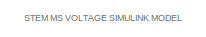
[diagram: root canvas - part 1/4, top center region]
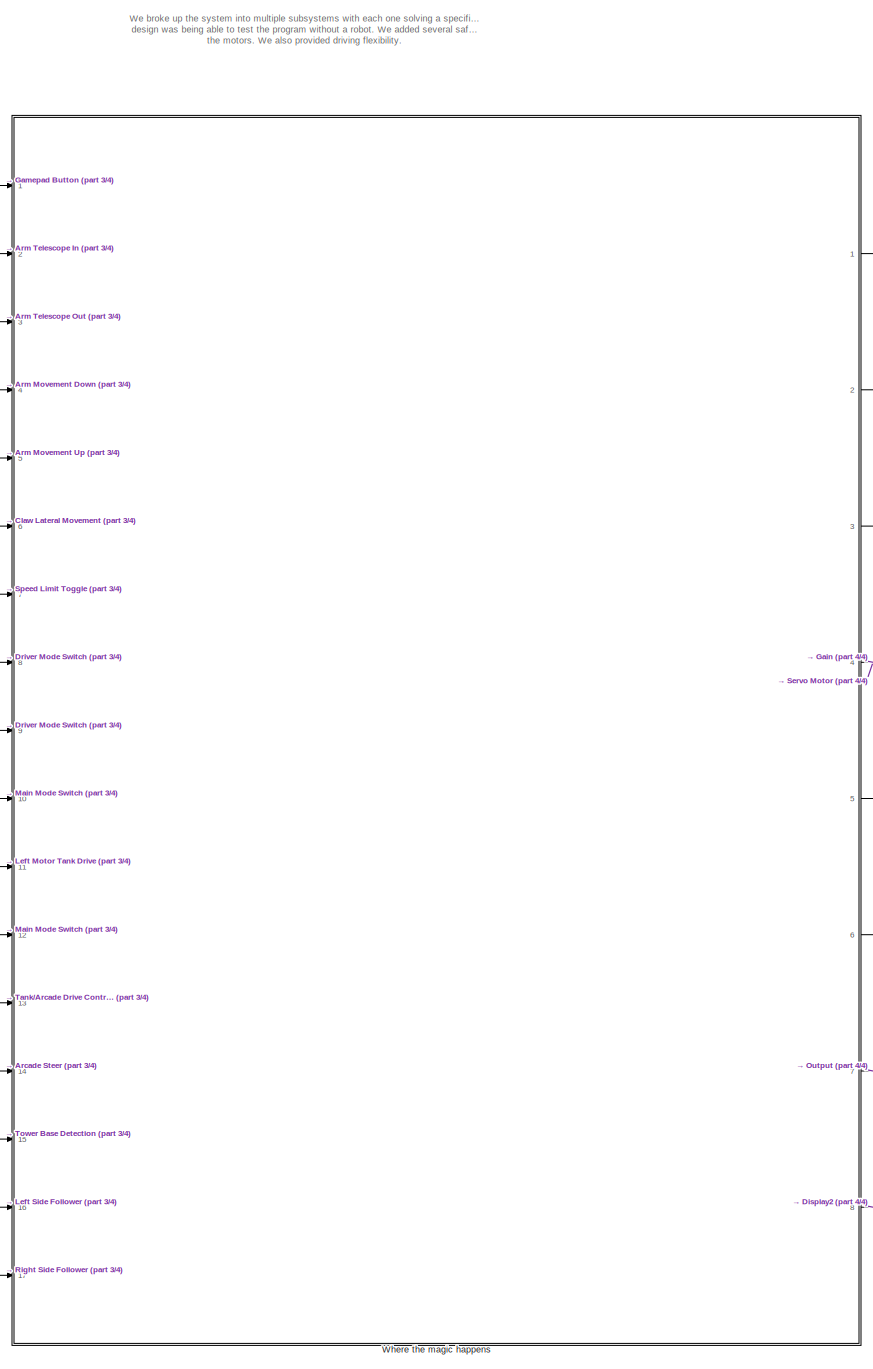
[diagram: root canvas - part 2/4, center side, full height]
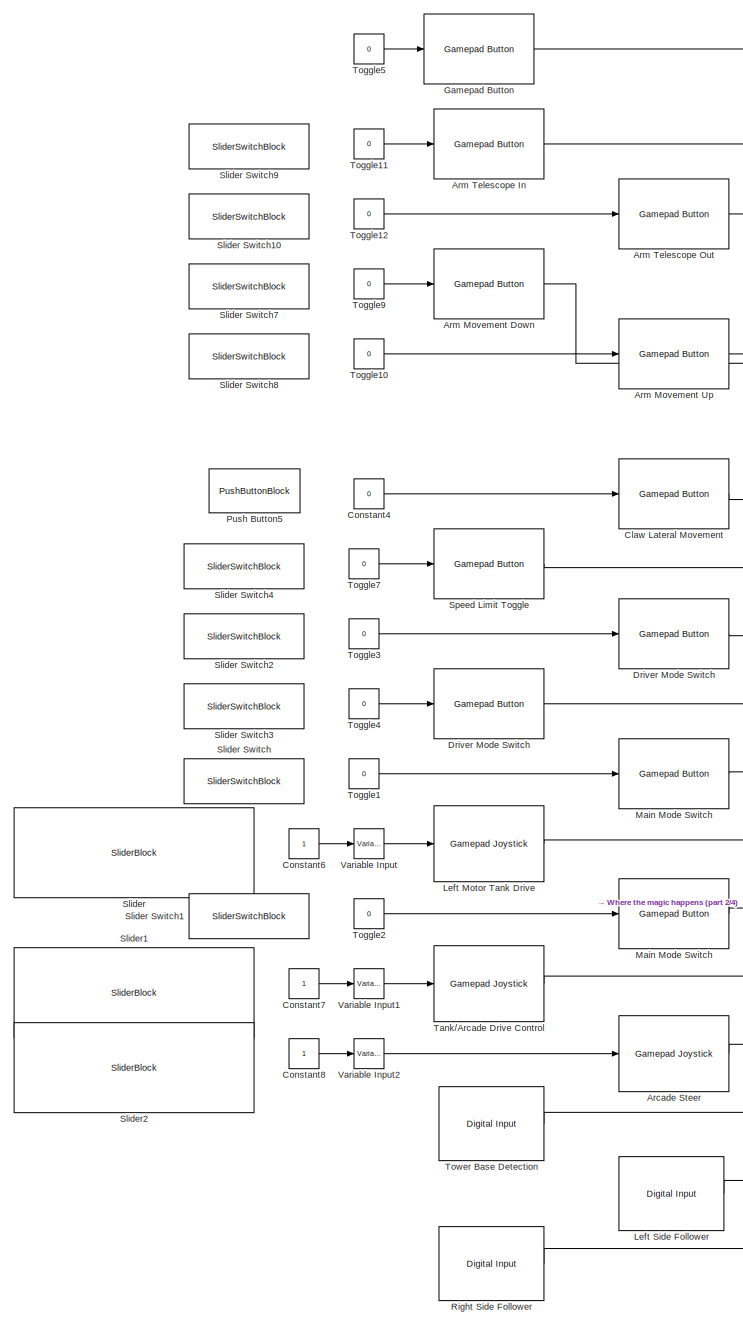
[diagram: root canvas - part 3/4, left side, full height]
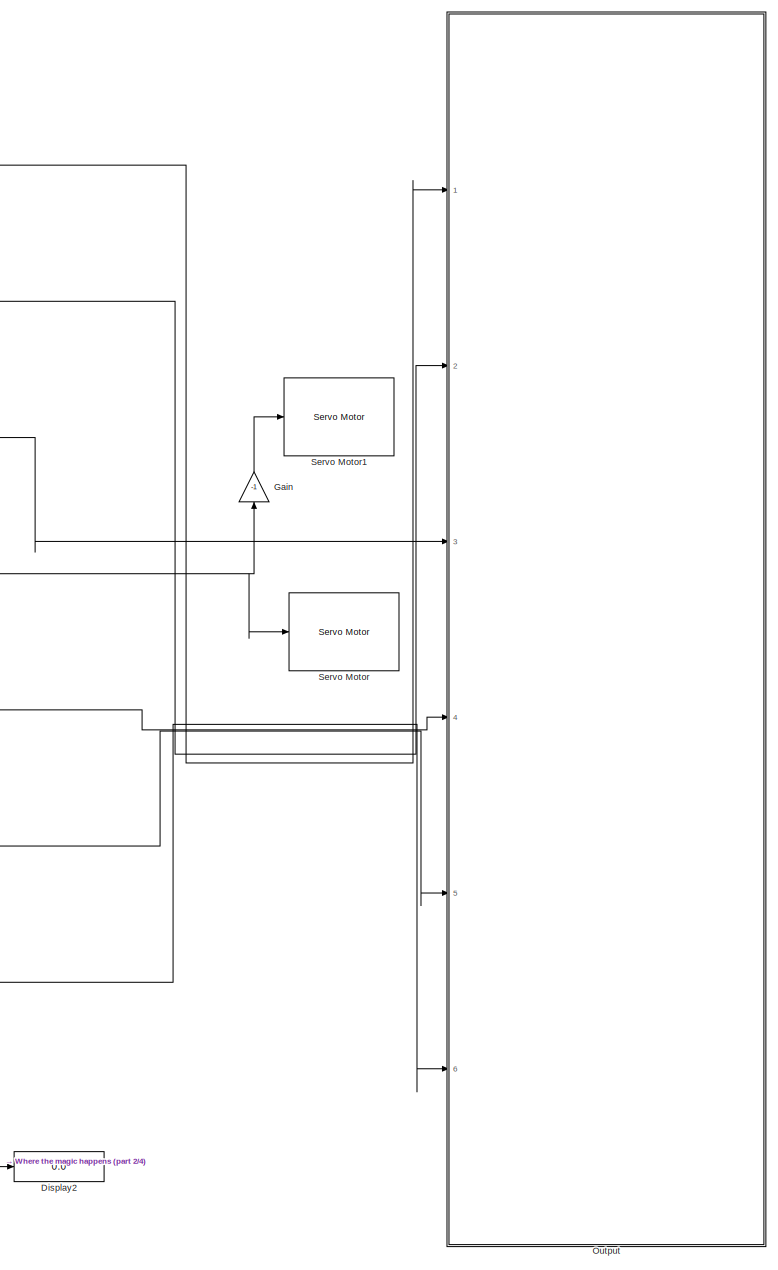
[diagram: root canvas - part 4/4, right side, full height]
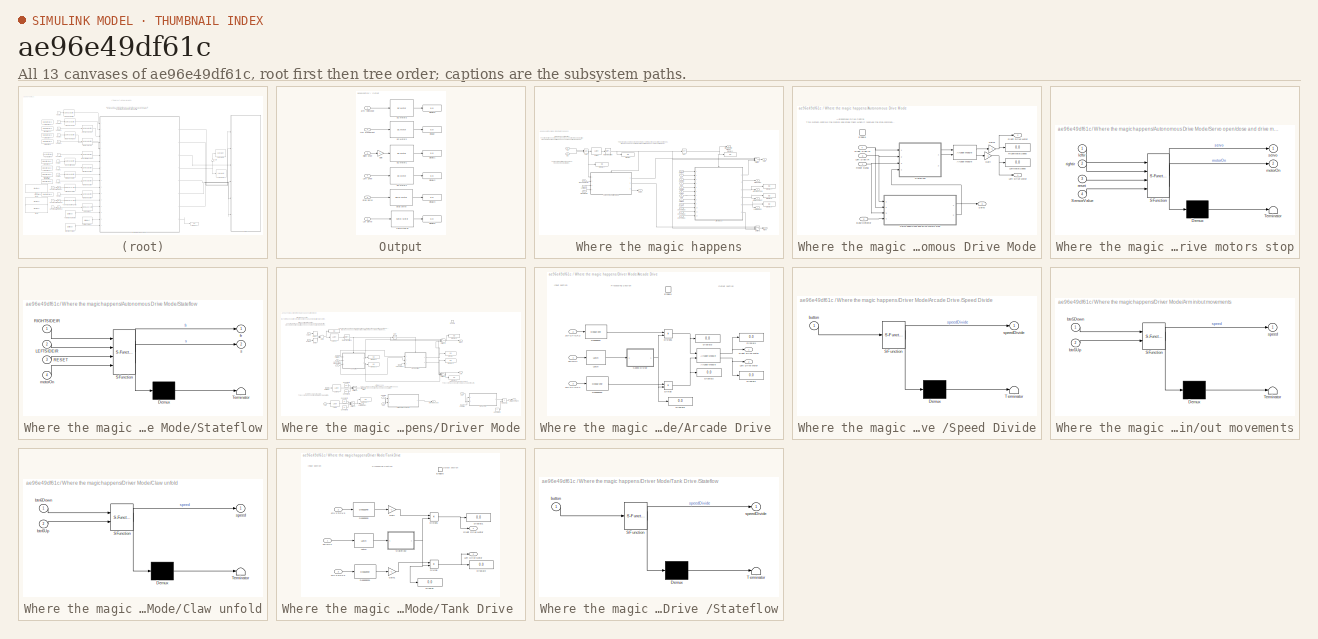
[diagram: thumbnail index - all 13 canvases of the model, root first then tree order]
MODEL slx_ae96e49df61c
KIND model
CONFIG AbsTol = auto
CONFIG EnableMultiTasking = off
CONFIG FixedStep = auto
CONFIG MaxStep = auto
CONFIG MinStep = auto
CONFIG RelTol = 1e-3
CONFIG SampleTimeConstraint = Unconstrained
CONFIG Solver = FixedStepAuto
CONFIG SolverName = FixedStepAuto
CONFIG StartTime = 0.0
CONFIG StopTime = inf
BLOCK [Reference] Arcade Steer   REF=vexarmcortexlib/Gamepad/Gamepad Joystick
  Ports = [1, 1]
  SourceBlock = vexarmcortexlib/Gamepad/Gamepad Joystick
  SourceProductBaseCode = EC_VEX_MICRO
  SourceProductName = Simulink Coder Support Package for ARM Cortex-based VEX Microcontroller
  SourceType = Gamepad Joystick
BLOCK [Reference] Arm Movement Down  REF=vexarmcortexlib/Gamepad/Gamepad Button
  Ports = [1, 1]
  SourceBlock = vexarmcortexlib/Gamepad/Gamepad Button
  SourceProductBaseCode = EC_VEX_MICRO
  SourceProductName = Simulink Coder Support Package for ARM Cortex-based VEX Microcontroller
  SourceType = Gamepad Button
BLOCK [Reference] Arm Movement Up  REF=vexarmcortexlib/Gamepad/Gamepad Button
  Ports = [1, 1]
  SourceBlock = vexarmcortexlib/Gamepad/Gamepad Button
  SourceProductBaseCode = EC_VEX_MICRO
  SourceProductName = Simulink Coder Support Package for ARM Cortex-based VEX Microcontroller
  SourceType = Gamepad Button
BLOCK [Reference] Arm Telescope In  REF=vexarmcortexlib/Gamepad/Gamepad Button
  Ports = [1, 1]
  SourceBlock = vexarmcortexlib/Gamepad/Gamepad Button
  SourceProductBaseCode = EC_VEX_MICRO
  SourceProductName = Simulink Coder Support Package for ARM Cortex-based VEX Microcontroller
  SourceType = Gamepad Button
BLOCK [Reference] Arm Telescope Out  REF=vexarmcortexlib/Gamepad/Gamepad Button
  Ports = [1, 1]
  SourceBlock = vexarmcortexlib/Gamepad/Gamepad Button
  SourceProductBaseCode = EC_VEX_MICRO
  SourceProductName = Simulink Coder Support Package for ARM Cortex-based VEX Microcontroller
  SourceType = Gamepad Button
BLOCK [Reference] Claw Lateral Movement  REF=vexarmcortexlib/Gamepad/Gamepad Button
  Ports = [1, 1]
  SourceBlock = vexarmcortexlib/Gamepad/Gamepad Button
  SourceProductBaseCode = EC_VEX_MICRO
  SourceProductName = Simulink Coder Support Package for ARM Cortex-based VEX Microcontroller
  SourceType = Gamepad Button
BLOCK [Constant] Constant4
  Value = 0
BLOCK [Constant] Constant6
BLOCK [Constant] Constant7
BLOCK [Constant] Constant8
BLOCK [Display] Display2
  Decimation = 1
  Ports = [1]
BLOCK [Reference] Driver Mode  Switch  REF=vexarmcortexlib/Gamepad/Gamepad Button
  Ports = [1, 1]
  SourceBlock = vexarmcortexlib/Gamepad/Gamepad Button
  SourceProductBaseCode = EC_VEX_MICRO
  SourceProductName = Simulink Coder Support Package for ARM Cortex-based VEX Microcontroller
  SourceType = Gamepad Button
BLOCK [Reference] Driver Mode Switch  REF=vexarmcortexlib/Gamepad/Gamepad Button
  Ports = [1, 1]
  SourceBlock = vexarmcortexlib/Gamepad/Gamepad Button
  SourceProductBaseCode = EC_VEX_MICRO
  SourceProductName = Simulink Coder Support Package for ARM Cortex-based VEX Microcontroller
  SourceType = Gamepad Button
BLOCK [Gain] Gain
  Gain = -1
  OutDataTypeStr = Inherit: Inherit via internal rule
  ParamDataTypeStr = Inherit: Inherit via internal rule
  SaturateOnIntegerOverflow = off
BLOCK [Reference] Gamepad Button  REF=vexarmcortexlib/Gamepad/Gamepad Button
  Ports = [1, 1]
  SourceBlock = vexarmcortexlib/Gamepad/Gamepad Button
  SourceProductBaseCode = EC_VEX_MICRO
  SourceProductName = Simulink Coder Support Package for ARM Cortex-based VEX Microcontroller
  SourceType = Gamepad Button
BLOCK [Reference] Left Motor Tank Drive  REF=vexarmcortexlib/Gamepad/Gamepad Joystick
  Ports = [1, 1]
  SourceBlock = vexarmcortexlib/Gamepad/Gamepad Joystick
  SourceProductBaseCode = EC_VEX_MICRO
  SourceProductName = Simulink Coder Support Package for ARM Cortex-based VEX Microcontroller
  SourceType = Gamepad Joystick
BLOCK [Reference] Left Side Follower  REF=vexarmcortexlib/Sensors/Digital Input
  Ports = [0, 1]
  SourceBlock = vexarmcortexlib/Sensors/Digital Input
  SourceProductBaseCode = EC_VEX_MICRO
  SourceProductName = Simulink Coder Support Package for ARM Cortex-based VEX Microcontroller
  SourceType = Digital Input
BLOCK [Reference] Main Mode  Switch  REF=vexarmcortexlib/Gamepad/Gamepad Button
  Ports = [1, 1]
  SourceBlock = vexarmcortexlib/Gamepad/Gamepad Button
  SourceProductBaseCode = EC_VEX_MICRO
  SourceProductName = Simulink Coder Support Package for ARM Cortex-based VEX Microcontroller
  SourceType = Gamepad Button
BLOCK [Reference] Main Mode Switch  REF=vexarmcortexlib/Gamepad/Gamepad Button
  Ports = [1, 1]
  SourceBlock = vexarmcortexlib/Gamepad/Gamepad Button
  SourceProductBaseCode = EC_VEX_MICRO
  SourceProductName = Simulink Coder Support Package for ARM Cortex-based VEX Microcontroller
  SourceType = Gamepad Button
BLOCK [SubSystem] Output
  Ports = [6]
  RequestExecContextInheritance = off
BLOCK [Inport] Output/Arm Movement
  IconDisplay = Port number
  Port = 2
BLOCK [Reference] Output/DC Motor1  REF=vexarmcortexlib/Actuators/DC Motor
  Ports = [1, 1]
  SourceBlock = vexarmcortexlib/Actuators/DC Motor
  SourceProductBaseCode = EC_VEX_MICRO
  SourceProductName = Simulink Coder Support Package for ARM Cortex-based VEX Microcontroller
  SourceType = DC Motor
BLOCK [Reference] Output/DC Motor2  REF=vexarmcortexlib/Actuators/DC Motor
  Ports = [1, 1]
  SourceBlock = vexarmcortexlib/Actuators/DC Motor
  SourceProductBaseCode = EC_VEX_MICRO
  SourceProductName = Simulink Coder Support Package for ARM Cortex-based VEX Microcontroller
  SourceType = DC Motor
BLOCK [Reference] Output/DC Motor3  REF=vexarmcortexlib/Actuators/DC Motor
  Ports = [1, 1]
  SourceBlock = vexarmcortexlib/Actuators/DC Motor
  SourceProductBaseCode = EC_VEX_MICRO
  SourceProductName = Simulink Coder Support Package for ARM Cortex-based VEX Microcontroller
  SourceType = DC Motor
BLOCK [Reference] Output/DC Motor4  REF=vexarmcortexlib/Actuators/DC Motor
  Ports = [1, 1]
  SourceBlock = vexarmcortexlib/Actuators/DC Motor
  SourceProductBaseCode = EC_VEX_MICRO
  SourceProductName = Simulink Coder Support Package for ARM Cortex-based VEX Microcontroller
  SourceType = DC Motor
BLOCK [Display] Output/Display
  Decimation = 1
  Ports = [1]
BLOCK [Display] Output/Display1
  Decimation = 1
  Ports = [1]
BLOCK [Display] Output/Display2
  Decimation = 1
  Ports = [1]
BLOCK [Display] Output/Display3
  Decimation = 1
  Ports = [1]
BLOCK [Display] Output/Display5
  Decimation = 1
  Ports = [1]
BLOCK [Display] Output/Display6
  Decimation = 1
  Ports = [1]
BLOCK [Gain] Output/Gain
  Gain = -1
  OutDataTypeStr = Inherit: Inherit via internal rule
  ParamDataTypeStr = Inherit: Inherit via internal rule
  SaturateOnIntegerOverflow = off
BLOCK [Inport] Output/Grab Servo
  IconDisplay = Port number
  Port = 5
BLOCK [Reference] Output/Grab servo  REF=vexarmcortexlib/Actuators/Servo Motor
  Ports = [1, 1]
  SourceBlock = vexarmcortexlib/Actuators/Servo Motor
  SourceProductBaseCode = EC_VEX_MICRO
  SourceProductName = Simulink Coder Support Package for ARM Cortex-based VEX Microcontroller
  SourceType = Servo Motor
BLOCK [Inport] Output/Lat Servo
  IconDisplay = Port number
  Port = 6
BLOCK [Reference] Output/Lateral Servo  REF=vexarmcortexlib/Actuators/Servo Motor
  Ports = [1, 1]
  SourceBlock = vexarmcortexlib/Actuators/Servo Motor
  SourceProductBaseCode = EC_VEX_MICRO
  SourceProductName = Simulink Coder Support Package for ARM Cortex-based VEX Microcontroller
  SourceType = Servo Motor
BLOCK [Inport] Output/Left Drive
  IconDisplay = Port number
  Port = 4
BLOCK [Inport] Output/Right Drive
  IconDisplay = Port number
  Port = 3
BLOCK [Inport] Output/arm telescope
  IconDisplay = Port number
BLOCK [PushButtonBlock] Push Button5
BLOCK [Reference] Right Side Follower  REF=vexarmcortexlib/Sensors/Digital Input
  Ports = [0, 1]
  SourceBlock = vexarmcortexlib/Sensors/Digital Input
  SourceProductBaseCode = EC_VEX_MICRO
  SourceProductName = Simulink Coder Support Package for ARM Cortex-based VEX Microcontroller
  SourceType = Digital Input
BLOCK [Reference] Servo Motor  REF=vexarmcortexlib/Actuators/Servo Motor
  Ports = [1]
  SourceBlock = vexarmcortexlib/Actuators/Servo Motor
  SourceProductBaseCode = EC_VEX_MICRO
  SourceProductName = Simulink Coder Support Package for ARM Cortex-based VEX Microcontroller
  SourceType = Servo Motor
BLOCK [Reference] Servo Motor1  REF=vexarmcortexlib/Actuators/Servo Motor
  Ports = [1]
  SourceBlock = vexarmcortexlib/Actuators/Servo Motor
  SourceProductBaseCode = EC_VEX_MICRO
  SourceProductName = Simulink Coder Support Package for ARM Cortex-based VEX Microcontroller
  SourceType = Servo Motor
BLOCK [SliderBlock] Slider
  LabelPosition = Hide
  ScaleMax = 127
  ScaleMin = -127
BLOCK [SliderSwitchBlock] Slider Switch
  LabelPosition = Hide
BLOCK [SliderSwitchBlock] Slider Switch1
  LabelPosition = Hide
BLOCK [SliderSwitchBlock] Slider Switch10
  LabelPosition = Hide
BLOCK [SliderSwitchBlock] Slider Switch2
  LabelPosition = Hide
BLOCK [SliderSwitchBlock] Slider Switch3
  LabelPosition = Hide
BLOCK [SliderSwitchBlock] Slider Switch4
  LabelPosition = Hide
BLOCK [SliderSwitchBlock] Slider Switch7
  LabelPosition = Hide
BLOCK [SliderSwitchBlock] Slider Switch8
  LabelPosition = Hide
BLOCK [SliderSwitchBlock] Slider Switch9
  LabelPosition = Hide
BLOCK [SliderBlock] Slider1
  LabelPosition = Hide
  ScaleMax = 127
  ScaleMin = -127
BLOCK [SliderBlock] Slider2
  LabelPosition = Hide
  ScaleMax = 127
  ScaleMin = -127
BLOCK [Reference] Speed Limit Toggle  REF=vexarmcortexlib/Gamepad/Gamepad Button
  Ports = [1, 1]
  SourceBlock = vexarmcortexlib/Gamepad/Gamepad Button
  SourceProductBaseCode = EC_VEX_MICRO
  SourceProductName = Simulink Coder Support Package for ARM Cortex-based VEX Microcontroller
  SourceType = Gamepad Button
BLOCK [Reference] Tank//Arcade Drive Control  REF=vexarmcortexlib/Gamepad/Gamepad Joystick
  Ports = [1, 1]
  SourceBlock = vexarmcortexlib/Gamepad/Gamepad Joystick
  SourceProductBaseCode = EC_VEX_MICRO
  SourceProductName = Simulink Coder Support Package for ARM Cortex-based VEX Microcontroller
  SourceType = Gamepad Joystick
BLOCK [Constant] Toggle1
  OpenFcn = if strcmp('0',get_param(gcb, 'Value'))                        set_param(gcb, 'Value', '1');\nelse                                                                                       \n            set_param(gcb, 'Value', '0');                                                  \nend  <repeated x10 — deduplicated; at blocks: Toggle1, Toggle10, Toggle11, Toggle12, Toggle2, Toggle3, Toggle4, Toggle5, Toggle7, Toggle9>
  Value = 0
BLOCK [Constant] Toggle10
  Value = 0
BLOCK [Constant] Toggle11
  Value = 0
BLOCK [Constant] Toggle12
  Value = 0
BLOCK [Constant] Toggle2
  Value = 0
BLOCK [Constant] Toggle3
  Value = 0
BLOCK [Constant] Toggle4
  Value = 0
BLOCK [Constant] Toggle5
  Value = 0
BLOCK [Constant] Toggle7
  Value = 0
BLOCK [Constant] Toggle9
  Value = 0
BLOCK [Reference] Tower Base Detection  REF=vexarmcortexlib/Sensors/Digital Input
  Ports = [0, 1]
  SourceBlock = vexarmcortexlib/Sensors/Digital Input
  SourceProductBaseCode = EC_VEX_MICRO
  SourceProductName = Simulink Coder Support Package for ARM Cortex-based VEX Microcontroller
  SourceType = Digital Input
BLOCK [Reference] Variable Input  REF=vexarmcortexlib/Utilities/Variable Input
  Ports = [1, 1]
  SourceBlock = vexarmcortexlib/Utilities/Variable Input
  SourceProductBaseCode = EC_VEX_MICRO
  SourceProductName = Simulink Coder Support Package for ARM Cortex-based VEX Microcontroller
  SourceType = Slider Gain
BLOCK [Reference] Variable Input1  REF=vexarmcortexlib/Utilities/Variable Input
  Ports = [1, 1]
  SourceBlock = vexarmcortexlib/Utilities/Variable Input
  SourceProductBaseCode = EC_VEX_MICRO
  SourceProductName = Simulink Coder Support Package for ARM Cortex-based VEX Microcontroller
  SourceType = Slider Gain
BLOCK [Reference] Variable Input2  REF=vexarmcortexlib/Utilities/Variable Input
  Ports = [1, 1]
  SourceBlock = vexarmcortexlib/Utilities/Variable Input
  SourceProductBaseCode = EC_VEX_MICRO
  SourceProductName = Simulink Coder Support Package for ARM Cortex-based VEX Microcontroller
  SourceType = Slider Gain
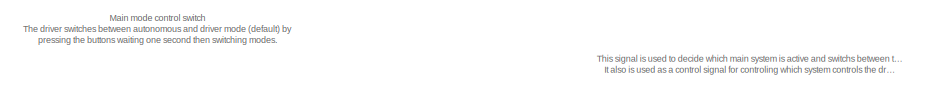
[diagram: Where the magic happens - part 1/3, top left region]
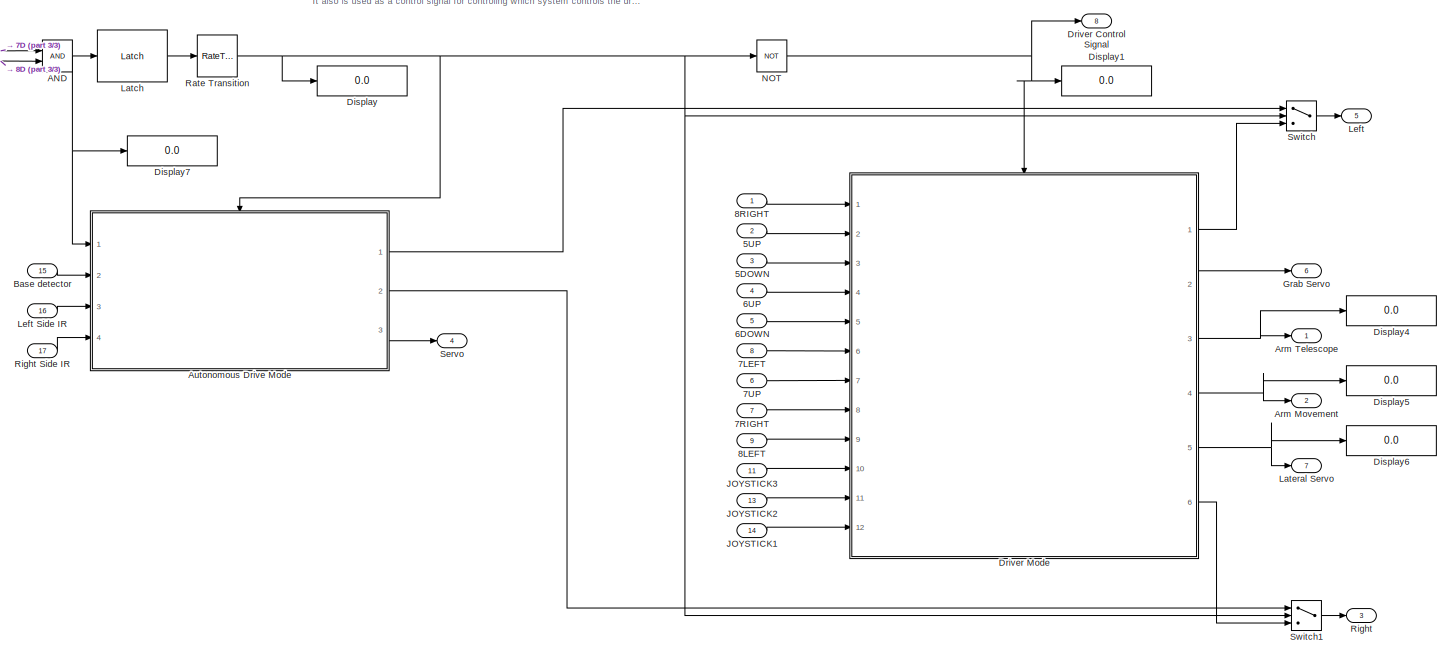
[diagram: Where the magic happens - part 2/3, most of the canvas]
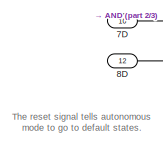
[diagram: Where the magic happens - part 3/3, top left region]
BLOCK [SubSystem] Where the magic happens
  Ports = [17, 8]
  RequestExecContextInheritance = off
BLOCK [Inport] Where the magic happens/5DOWN
  IconDisplay = Port number
  Port = 3
BLOCK [Inport] Where the magic happens/5UP
  IconDisplay = Port number
  Port = 2
BLOCK [Inport] Where the magic happens/6DOWN
  IconDisplay = Port number
  Port = 5
BLOCK [Inport] Where the magic happens/6UP
  IconDisplay = Port number
  Port = 4
BLOCK [Inport] Where the magic happens/7D
  IconDisplay = Port number
  Port = 10
BLOCK [Inport] Where the magic happens/7LEFT
  IconDisplay = Port number
  Port = 8
BLOCK [Inport] Where the magic happens/7RIGHT
  IconDisplay = Port number
  Port = 7
BLOCK [Inport] Where the magic happens/7UP
  IconDisplay = Port number
  Port = 6
BLOCK [Inport] Where the magic happens/8D
  IconDisplay = Port number
  Port = 12
BLOCK [Inport] Where the magic happens/8LEFT
  IconDisplay = Port number
  Port = 9
BLOCK [Inport] Where the magic happens/8RIGHT
  IconDisplay = Port number
BLOCK [Logic] Where the magic happens/AND 
  AllPortsSameDT = off
  IconShape = distinctive
  OutDataTypeStr = boolean
  Ports = [2, 1]
BLOCK [Outport] Where the magic happens/Arm Movement
  IconDisplay = Port number
  Port = 2
BLOCK [Outport] Where the magic happens/Arm Telescope
  IconDisplay = Port number
BLOCK [SubSystem] Where the magic happens/Autonomous Drive Mode
  Ports = [4, 3, 1]
  RequestExecContextInheritance = off
BLOCK [Reference] Where the magic happens/Autonomous Drive Mode/Arcade Module  REF=vexcommonlib/Arcade Module
  Ports = [2, 2]
  SourceBlock = vexcommonlib/Arcade Module
  SourceProductBaseCode = EC_VEX_MICRO
  SourceProductName = Simulink Coder Support Package for ARM Cortex-based VEX Microcontroller
  SourceType = Arcade-2 Motors Module
BLOCK [Inport] Where the magic happens/Autonomous Drive Mode/Base Detector
  IconDisplay = Port number
  Port = 2
BLOCK [EnablePort] Where the magic happens/Autonomous Drive Mode/Enable
  Ports = []
BLOCK [Gain] Where the magic happens/Autonomous Drive Mode/Gain
  Gain = -1
  OutDataTypeStr = Inherit: Inherit via internal rule
  ParamDataTypeStr = Inherit: Inherit via internal rule
  SaturateOnIntegerOverflow = off
BLOCK [Gain] Where the magic happens/Autonomous Drive Mode/Gain1
  Gain = -1
  OutDataTypeStr = Inherit: Inherit via internal rule
  ParamDataTypeStr = Inherit: Inherit via internal rule
  SaturateOnIntegerOverflow = off
BLOCK [Outport] Where the magic happens/Autonomous Drive Mode/Left Drive Motor
  IconDisplay = Port number
BLOCK [Inport] Where the magic happens/Autonomous Drive Mode/Left Side IR
  IconDisplay = Port number
  Port = 3
BLOCK [Display] Where the magic happens/Autonomous Drive Mode/LeftMotorSpeed
  Decimation = 1
  Ports = [1]
BLOCK [Inport] Where the magic happens/Autonomous Drive Mode/Reset signal
  IconDisplay = Port number
BLOCK [Outport] Where the magic happens/Autonomous Drive Mode/Right Drive Motor
  IconDisplay = Port number
  Port = 2
BLOCK [Inport] Where the magic happens/Autonomous Drive Mode/Right Side IR
  IconDisplay = Port number
  Port = 4
BLOCK [Display] Where the magic happens/Autonomous Drive Mode/RightMotorSpeed
  Decimation = 1
  Ports = [1]
BLOCK [Outport] Where the magic happens/Autonomous Drive Mode/Servo
  IconDisplay = Port number
  Port = 3
BLOCK [SubSystem] Where the magic happens/Autonomous Drive Mode/Servo open//close and drive motors stop
  ErrorFcn = Stateflow.Translate.translate
  PermitHierarchicalResolution = ExplicitOnly
  Ports = [4, 2]
  RequestExecContextInheritance = off
  SFBlockType = Chart
  TreatAsAtomicUnit = on
BLOCK [Demux] Where the magic happens/Autonomous Drive Mode/Servo open//close and drive motors stop/ Demux 
  Outputs = 1
  Ports = [1, 1]
BLOCK [S-Function] Where the magic happens/Autonomous Drive Mode/Servo open//close and drive motors stop/ SFunction 
  EnableBusSupport = on
  FunctionName = sf_sfun
  PortCounts = [4 3]
  Ports = [4, 3]
  SFcnIsStateOwnerBlock = off
  SFunctionDeploymentMode = off
  Tag = Stateflow S-Function 4
BLOCK [Terminator] Where the magic happens/Autonomous Drive Mode/Servo open//close and drive motors stop/ Terminator 
BLOCK [Inport] Where the magic happens/Autonomous Drive Mode/Servo open//close and drive motors stop/SensorValue
  IconDisplay = Port number
  Port = 4
BLOCK [Inport] Where the magic happens/Autonomous Drive Mode/Servo open//close and drive motors stop/leftir
  IconDisplay = Port number
BLOCK [Outport] Where the magic happens/Autonomous Drive Mode/Servo open//close and drive motors stop/motorOn
  IconDisplay = Port number
  Port = 2
BLOCK [Inport] Where the magic happens/Autonomous Drive Mode/Servo open//close and drive motors stop/reset
  IconDisplay = Port number
  Port = 3
BLOCK [Inport] Where the magic happens/Autonomous Drive Mode/Servo open//close and drive motors stop/rightir
  IconDisplay = Port number
  Port = 2
BLOCK [Outport] Where the magic happens/Autonomous Drive Mode/Servo open//close and drive motors stop/servo
  IconDisplay = Port number
BLOCK [SubSystem] Where the magic happens/Autonomous Drive Mode/Stateflow
  ErrorFcn = Stateflow.Translate.translate
  PermitHierarchicalResolution = ExplicitOnly
  Ports = [4, 2]
  RequestExecContextInheritance = off
  SFBlockType = Chart
  TreatAsAtomicUnit = on
BLOCK [Demux] Where the magic happens/Autonomous Drive Mode/Stateflow/ Demux 
  Outputs = 1
  Ports = [1, 1]
BLOCK [S-Function] Where the magic happens/Autonomous Drive Mode/Stateflow/ SFunction 
  EnableBusSupport = on
  FunctionName = sf_sfun
  PortCounts = [4 3]
  Ports = [4, 3]
  SFcnIsStateOwnerBlock = off
  SFunctionDeploymentMode = off
  Tag = Stateflow S-Function 1
BLOCK [Terminator] Where the magic happens/Autonomous Drive Mode/Stateflow/ Terminator 
BLOCK [Inport] Where the magic happens/Autonomous Drive Mode/Stateflow/LEFTSIDEIR
  IconDisplay = Port number
  Port = 2
BLOCK [Inport] Where the magic happens/Autonomous Drive Mode/Stateflow/RESET
  IconDisplay = Port number
  Port = 3
BLOCK [Inport] Where the magic happens/Autonomous Drive Mode/Stateflow/RIGHTSIDEIR
  IconDisplay = Port number
BLOCK [Outport] Where the magic happens/Autonomous Drive Mode/Stateflow/fr
  IconDisplay = Port number
BLOCK [Inport] Where the magic happens/Autonomous Drive Mode/Stateflow/motorOn
  IconDisplay = Port number
  Port = 4
BLOCK [Outport] Where the magic happens/Autonomous Drive Mode/Stateflow/s
  IconDisplay = Port number
  Port = 2
BLOCK [Inport] Where the magic happens/Base detector
  IconDisplay = Port number
  Port = 15
BLOCK [Display] Where the magic happens/Display
  Decimation = 1
  Ports = [1]
BLOCK [Display] Where the magic happens/Display1
  Decimation = 1
  Ports = [1]
BLOCK [Display] Where the magic happens/Display4
  Decimation = 1
  Ports = [1]
BLOCK [Display] Where the magic happens/Display5
  Decimation = 1
  Ports = [1]
BLOCK [Display] Where the magic happens/Display6
  Decimation = 1
  Ports = [1]
BLOCK [Display] Where the magic happens/Display7
  Decimation = 1
  Ports = [1]
BLOCK [Outport] Where the magic happens/Driver Control Signal
  IconDisplay = Port number
  Port = 8
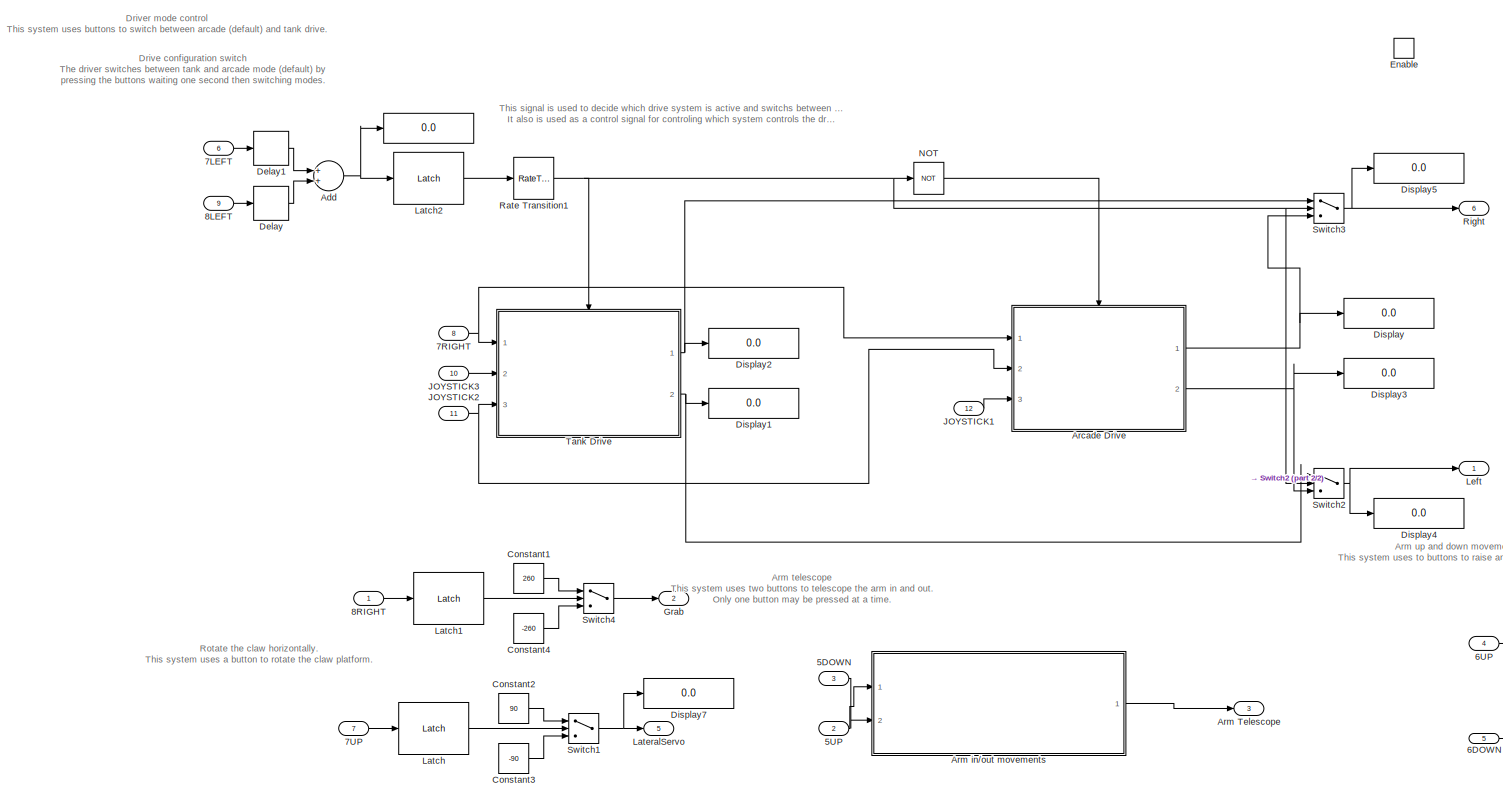
[diagram: Where the magic happens/Driver Mode - part 1/2, most of the canvas]
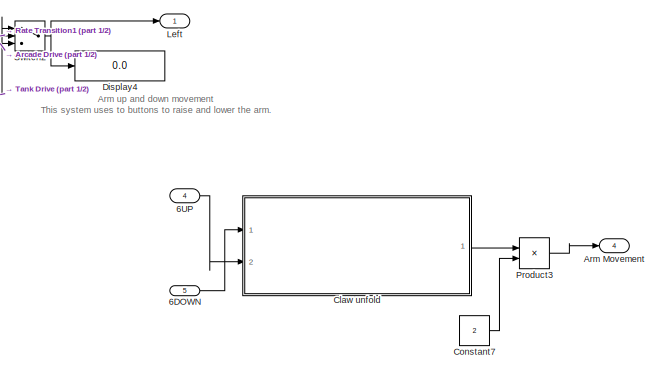
[diagram: Where the magic happens/Driver Mode - part 2/2, bottom right region]
BLOCK [SubSystem] Where the magic happens/Driver Mode
  Ports = [12, 6, 1]
  RequestExecContextInheritance = off
  TreatAsAtomicUnit = on
BLOCK [Display] Where the magic happens/Driver Mode/ 
  Decimation = 1
  Ports = [1]
BLOCK [Inport] Where the magic happens/Driver Mode/5DOWN
  IconDisplay = Port number
  Port = 3
BLOCK [Inport] Where the magic happens/Driver Mode/5UP
  IconDisplay = Port number
  Port = 2
BLOCK [Inport] Where the magic happens/Driver Mode/6DOWN
  IconDisplay = Port number
  Port = 5
BLOCK [Inport] Where the magic happens/Driver Mode/6UP
  IconDisplay = Port number
  Port = 4
BLOCK [Inport] Where the magic happens/Driver Mode/7LEFT
  IconDisplay = Port number
  Port = 6
BLOCK [Inport] Where the magic happens/Driver Mode/7RIGHT
  IconDisplay = Port number
  Port = 8
BLOCK [Inport] Where the magic happens/Driver Mode/7UP
  IconDisplay = Port number
  Port = 7
BLOCK [Inport] Where the magic happens/Driver Mode/8LEFT
  IconDisplay = Port number
  Port = 9
BLOCK [Inport] Where the magic happens/Driver Mode/8RIGHT
  IconDisplay = Port number
BLOCK [Sum] Where the magic happens/Driver Mode/Add
  InputSameDT = off
  OutDataTypeStr = Inherit: Inherit via internal rule
  Ports = [2, 1]
  SaturateOnIntegerOverflow = off
BLOCK [SubSystem] Where the magic happens/Driver Mode/Arcade Drive 
  Ports = [3, 2, 1]
  RequestExecContextInheritance = off
  TreatAsAtomicUnit = on
BLOCK [Inport] Where the magic happens/Driver Mode/Arcade Drive /7RIGHT
  IconDisplay = Port number
BLOCK [Reference] Where the magic happens/Driver Mode/Arcade Drive /Arcade Module  REF=vexcommonlib/Arcade Module
  Ports = [2, 2]
  SourceBlock = vexcommonlib/Arcade Module
  SourceProductBaseCode = EC_VEX_MICRO
  SourceProductName = Simulink Coder Support Package for ARM Cortex-based VEX Microcontroller
  SourceType = Arcade-2 Motors Module
BLOCK [DeadZone] Where the magic happens/Driver Mode/Arcade Drive /Deadband
  LowerValue = -9
  UpperValue = 9
BLOCK [DeadZone] Where the magic happens/Driver Mode/Arcade Drive /Deadband1
  LowerValue = -9
  UpperValue = 9
BLOCK [Display] Where the magic happens/Driver Mode/Arcade Drive /Display1
  Decimation = 1
  Ports = [1]
BLOCK [Display] Where the magic happens/Driver Mode/Arcade Drive /Display2
  Decimation = 1
  Ports = [1]
BLOCK [Display] Where the magic happens/Driver Mode/Arcade Drive /Display3
  Decimation = 1
  Ports = [1]
BLOCK [Display] Where the magic happens/Driver Mode/Arcade Drive /Display4
  Decimation = 1
  Ports = [1]
BLOCK [Display] Where the magic happens/Driver Mode/Arcade Drive /Display6
  Decimation = 1
  Ports = [1]
BLOCK [Product] Where the magic happens/Driver Mode/Arcade Drive /Divide
  InputSameDT = off
  Inputs = */
  OutDataTypeStr = Inherit: Inherit via internal rule
  Ports = [2, 1]
  RndMeth = Floor
  SaturateOnIntegerOverflow = off
BLOCK [Product] Where the magic happens/Driver Mode/Arcade Drive /Divide1
  InputSameDT = off
  Inputs = */
  OutDataTypeStr = Inherit: Inherit via internal rule
  Ports = [2, 1]
  RndMeth = Floor
  SaturateOnIntegerOverflow = off
BLOCK [EnablePort] Where the magic happens/Driver Mode/Arcade Drive /Enable
  Ports = []
BLOCK [Inport] Where the magic happens/Driver Mode/Arcade Drive /JOYSTICK1
  IconDisplay = Port number
  Port = 3
BLOCK [Inport] Where the magic happens/Driver Mode/Arcade Drive /JOYSTICK2
  IconDisplay = Port number
  Port = 2
BLOCK [Reference] Where the magic happens/Driver Mode/Arcade Drive /Latch  REF=vexcommonlib/Latch
  Ports = [1, 1]
  SourceBlock = vexcommonlib/Latch
  SourceProductBaseCode = EC_VEX_MICRO
  SourceProductName = Simulink Coder Support Package for ARM Cortex-based VEX Microcontroller
  SourceType = Latch
BLOCK [Outport] Where the magic happens/Driver Mode/Arcade Drive /Left Drive Motor
  IconDisplay = Port number
  Port = 2
BLOCK [Outport] Where the magic happens/Driver Mode/Arcade Drive /Right Drive Motor
  IconDisplay = Port number
BLOCK [SubSystem] Where the magic happens/Driver Mode/Arcade Drive /Speed Divide
  ErrorFcn = Stateflow.Translate.translate
  PermitHierarchicalResolution = ExplicitOnly
  Ports = [1, 1]
  RequestExecContextInheritance = off
  SFBlockType = Chart
  TreatAsAtomicUnit = on
BLOCK [Demux] Where the magic happens/Driver Mode/Arcade Drive /Speed Divide/ Demux 
  Outputs = 1
  Ports = [1, 1]
BLOCK [S-Function] Where the magic happens/Driver Mode/Arcade Drive /Speed Divide/ SFunction 
  EnableBusSupport = on
  FunctionName = sf_sfun
  PortCounts = [1 2]
  Ports = [1, 2]
  SFcnIsStateOwnerBlock = off
  SFunctionDeploymentMode = off
  Tag = Stateflow S-Function 2
BLOCK [Terminator] Where the magic happens/Driver Mode/Arcade Drive /Speed Divide/ Terminator 
BLOCK [Inport] Where the magic happens/Driver Mode/Arcade Drive /Speed Divide/button
  IconDisplay = Port number
BLOCK [Outport] Where the magic happens/Driver Mode/Arcade Drive /Speed Divide/speedDivide
  IconDisplay = Port number
BLOCK [Outport] Where the magic happens/Driver Mode/Arm Movement
  IconDisplay = Port number
  Port = 4
BLOCK [Outport] Where the magic happens/Driver Mode/Arm Telescope
  IconDisplay = Port number
  Port = 3
BLOCK [SubSystem] Where the magic happens/Driver Mode/Arm in//out movements
  BlockKeywords = __PRM__SERIALIZED__DATA__:Stateflow Chart,Stateflow Diagram
  ErrorFcn = Stateflow.Translate.translate
  PermitHierarchicalResolution = ExplicitOnly
  Ports = [2, 1]
  RequestExecContextInheritance = off
  SFBlockType = Chart
  TreatAsAtomicUnit = on
BLOCK [Demux] Where the magic happens/Driver Mode/Arm in//out movements/ Demux 
  Outputs = 1
  Ports = [1, 1]
BLOCK [S-Function] Where the magic happens/Driver Mode/Arm in//out movements/ SFunction 
  EnableBusSupport = on
  FunctionName = sf_sfun
  PortCounts = [2 2]
  Ports = [2, 2]
  SFcnIsStateOwnerBlock = off
  SFunctionDeploymentMode = off
  Tag = Stateflow S-Function 5
BLOCK [Terminator] Where the magic happens/Driver Mode/Arm in//out movements/ Terminator 
BLOCK [Inport] Where the magic happens/Driver Mode/Arm in//out movements/btn5Down
  IconDisplay = Port number
BLOCK [Inport] Where the magic happens/Driver Mode/Arm in//out movements/btn5Up
  IconDisplay = Port number
  Port = 2
BLOCK [Outport] Where the magic happens/Driver Mode/Arm in//out movements/speed
  IconDisplay = Port number
BLOCK [SubSystem] Where the magic happens/Driver Mode/Claw unfold
  BlockKeywords = __PRM__SERIALIZED__DATA__:Stateflow Chart,Stateflow Diagram
  ErrorFcn = Stateflow.Translate.translate
  PermitHierarchicalResolution = ExplicitOnly
  Ports = [2, 1]
  RequestExecContextInheritance = off
  SFBlockType = Chart
  TreatAsAtomicUnit = on
BLOCK [Demux] Where the magic happens/Driver Mode/Claw unfold/ Demux 
  Outputs = 1
  Ports = [1, 1]
BLOCK [S-Function] Where the magic happens/Driver Mode/Claw unfold/ SFunction 
  EnableBusSupport = on
  FunctionName = sf_sfun
  PortCounts = [2 2]
  Ports = [2, 2]
  SFcnIsStateOwnerBlock = off
  SFunctionDeploymentMode = off
  Tag = Stateflow S-Function 6
BLOCK [Terminator] Where the magic happens/Driver Mode/Claw unfold/ Terminator 
BLOCK [Inport] Where the magic happens/Driver Mode/Claw unfold/btn6Down
  IconDisplay = Port number
BLOCK [Inport] Where the magic happens/Driver Mode/Claw unfold/btn6Up
  IconDisplay = Port number
  Port = 2
BLOCK [Outport] Where the magic happens/Driver Mode/Claw unfold/speed
  IconDisplay = Port number
BLOCK [Constant] Where the magic happens/Driver Mode/Constant1
  Value = 260
BLOCK [Constant] Where the magic happens/Driver Mode/Constant2
  Value = 90
BLOCK [Constant] Where the magic happens/Driver Mode/Constant3
  Value = -90
BLOCK [Constant] Where the magic happens/Driver Mode/Constant4
  Value = -260
BLOCK [Constant] Where the magic happens/Driver Mode/Constant7
  Value = 2
BLOCK [Delay] Where the magic happens/Driver Mode/Delay
  DelayLength = 1
  InitialCondition = 0
  InputPortMap = u0
  Ports = [1, 1]
  SampleTime = 0.5
BLOCK [Delay] Where the magic happens/Driver Mode/Delay1
  DelayLength = 1
  InitialCondition = 0
  InputPortMap = u0
  Ports = [1, 1]
  SampleTime = 0.5
BLOCK [Display] Where the magic happens/Driver Mode/Display
  Decimation = 1
  Ports = [1]
BLOCK [Display] Where the magic happens/Driver Mode/Display1
  Decimation = 1
  Ports = [1]
BLOCK [Display] Where the magic happens/Driver Mode/Display2
  Decimation = 1
  Ports = [1]
BLOCK [Display] Where the magic happens/Driver Mode/Display3
  Decimation = 1
  Ports = [1]
BLOCK [Display] Where the magic happens/Driver Mode/Display4
  Decimation = 1
  Ports = [1]
BLOCK [Display] Where the magic happens/Driver Mode/Display5
  Decimation = 1
  Ports = [1]
BLOCK [Display] Where the magic happens/Driver Mode/Display7
  Decimation = 1
  Ports = [1]
BLOCK [EnablePort] Where the magic happens/Driver Mode/Enable
  Ports = []
BLOCK [Outport] Where the magic happens/Driver Mode/Grab
  IconDisplay = Port number
  Port = 2
BLOCK [Inport] Where the magic happens/Driver Mode/JOYSTICK1
  IconDisplay = Port number
  Port = 12
BLOCK [Inport] Where the magic happens/Driver Mode/JOYSTICK2
  IconDisplay = Port number
  Port = 11
BLOCK [Inport] Where the magic happens/Driver Mode/JOYSTICK3
  IconDisplay = Port number
  Port = 10
BLOCK [Reference] Where the magic happens/Driver Mode/Latch  REF=vexcommonlib/Latch
  Ports = [1, 1]
  SourceBlock = vexcommonlib/Latch
  SourceProductBaseCode = EC_VEX_MICRO
  SourceProductName = Simulink Coder Support Package for ARM Cortex-based VEX Microcontroller
  SourceType = Latch
BLOCK [Reference] Where the magic happens/Driver Mode/Latch1  REF=vexcommonlib/Latch
  Ports = [1, 1]
  SourceBlock = vexcommonlib/Latch
  SourceProductBaseCode = EC_VEX_MICRO
  SourceProductName = Simulink Coder Support Package for ARM Cortex-based VEX Microcontroller
  SourceType = Latch
BLOCK [Reference] Where the magic happens/Driver Mode/Latch2  REF=vexcommonlib/Latch
  Ports = [1, 1]
  SourceBlock = vexcommonlib/Latch
  SourceProductBaseCode = EC_VEX_MICRO
  SourceProductName = Simulink Coder Support Package for ARM Cortex-based VEX Microcontroller
  SourceType = Latch
BLOCK [Outport] Where the magic happens/Driver Mode/LateralServo
  IconDisplay = Port number
  Port = 5
BLOCK [Outport] Where the magic happens/Driver Mode/Left
  IconDisplay = Port number
BLOCK [Logic] Where the magic happens/Driver Mode/NOT
  AllPortsSameDT = off
  IconShape = distinctive
  Operator = NOT
  OutDataTypeStr = boolean
  Ports = [1, 1]
BLOCK [Product] Where the magic happens/Driver Mode/Product3
  InputSameDT = off
  OutDataTypeStr = Inherit: Inherit via internal rule
  Ports = [2, 1]
  SaturateOnIntegerOverflow = off
BLOCK [RateTransition] Where the magic happens/Driver Mode/Rate Transition1
  OutPortSampleTime = 0.002
BLOCK [Outport] Where the magic happens/Driver Mode/Right
  IconDisplay = Port number
  Port = 6
BLOCK [Switch] Where the magic happens/Driver Mode/Switch1
  InputSameDT = off
  SaturateOnIntegerOverflow = off
  Threshold = 1
BLOCK [Switch] Where the magic happens/Driver Mode/Switch2
  InputSameDT = off
  SaturateOnIntegerOverflow = off
  Threshold = 1
BLOCK [Switch] Where the magic happens/Driver Mode/Switch3
  InputSameDT = off
  SaturateOnIntegerOverflow = off
  Threshold = 1
BLOCK [Switch] Where the magic happens/Driver Mode/Switch4
  InputSameDT = off
  SaturateOnIntegerOverflow = off
  Threshold = 1
BLOCK [SubSystem] Where the magic happens/Driver Mode/Tank Drive 
  Ports = [3, 2, 1]
  RequestExecContextInheritance = off
  TreatAsAtomicUnit = on
BLOCK [Inport] Where the magic happens/Driver Mode/Tank Drive /7RIGHT
  IconDisplay = Port number
BLOCK [DeadZone] Where the magic happens/Driver Mode/Tank Drive /Deadband
  LowerValue = -5
  UpperValue = 5
BLOCK [DeadZone] Where the magic happens/Driver Mode/Tank Drive /Deadband1
  LowerValue = -5
  UpperValue = 5
BLOCK [Display] Where the magic happens/Driver Mode/Tank Drive /Display
  Decimation = 1
  Ports = [1]
BLOCK [Display] Where the magic happens/Driver Mode/Tank Drive /Display1
  Decimation = 1
  Ports = [1]
BLOCK [Display] Where the magic happens/Driver Mode/Tank Drive /Display2
  Decimation = 1
  Ports = [1]
BLOCK [Product] Where the magic happens/Driver Mode/Tank Drive /Divide
  InputSameDT = off
  Inputs = */
  OutDataTypeStr = Inherit: Inherit via internal rule
  Ports = [2, 1]
  RndMeth = Floor
  SaturateOnIntegerOverflow = off
BLOCK [Product] Where the magic happens/Driver Mode/Tank Drive /Divide1
  InputSameDT = off
  Inputs = */
  OutDataTypeStr = Inherit: Inherit via internal rule
  Ports = [2, 1]
  RndMeth = Floor
  SaturateOnIntegerOverflow = off
BLOCK [EnablePort] Where the magic happens/Driver Mode/Tank Drive /Enable
  Ports = []
BLOCK [Gain] Where the magic happens/Driver Mode/Tank Drive /Gain
  Gain = -1
  OutDataTypeStr = Inherit: Inherit via internal rule
  ParamDataTypeStr = Inherit: Inherit via internal rule
  SaturateOnIntegerOverflow = off
BLOCK [Gain] Where the magic happens/Driver Mode/Tank Drive /Gain1
  Gain = -1
  OutDataTypeStr = Inherit: Inherit via internal rule
  ParamDataTypeStr = Inherit: Inherit via internal rule
  SaturateOnIntegerOverflow = off
BLOCK [Inport] Where the magic happens/Driver Mode/Tank Drive /JOYSTICK2
  IconDisplay = Port number
  Port = 3
BLOCK [Inport] Where the magic happens/Driver Mode/Tank Drive /JOYSTICK3
  IconDisplay = Port number
  Port = 2
BLOCK [Reference] Where the magic happens/Driver Mode/Tank Drive /Latch  REF=vexcommonlib/Latch
  Ports = [1, 1]
  SourceBlock = vexcommonlib/Latch
  SourceProductBaseCode = EC_VEX_MICRO
  SourceProductName = Simulink Coder Support Package for ARM Cortex-based VEX Microcontroller
  SourceType = Latch
BLOCK [Outport] Where the magic happens/Driver Mode/Tank Drive /Left Drive Motor
  IconDisplay = Port number
  Port = 2
BLOCK [Outport] Where the magic happens/Driver Mode/Tank Drive /Right Drive Motor
  IconDisplay = Port number
BLOCK [SubSystem] Where the magic happens/Driver Mode/Tank Drive /Stateflow
  ErrorFcn = Stateflow.Translate.translate
  PermitHierarchicalResolution = ExplicitOnly
  Ports = [1, 1]
  RequestExecContextInheritance = off
  SFBlockType = Chart
  TreatAsAtomicUnit = on
BLOCK [Demux] Where the magic happens/Driver Mode/Tank Drive /Stateflow/ Demux 
  Outputs = 1
  Ports = [1, 1]
BLOCK [S-Function] Where the magic happens/Driver Mode/Tank Drive /Stateflow/ SFunction 
  EnableBusSupport = on
  FunctionName = sf_sfun
  PortCounts = [1 2]
  Ports = [1, 2]
  SFcnIsStateOwnerBlock = off
  SFunctionDeploymentMode = off
  Tag = Stateflow S-Function 3
BLOCK [Terminator] Where the magic happens/Driver Mode/Tank Drive /Stateflow/ Terminator 
BLOCK [Inport] Where the magic happens/Driver Mode/Tank Drive /Stateflow/button
  IconDisplay = Port number
BLOCK [Outport] Where the magic happens/Driver Mode/Tank Drive /Stateflow/speedDivide
  IconDisplay = Port number
BLOCK [Outport] Where the magic happens/Grab Servo
  IconDisplay = Port number
  Port = 6
BLOCK [Inport] Where the magic happens/JOYSTICK1
  IconDisplay = Port number
  Port = 14
BLOCK [Inport] Where the magic happens/JOYSTICK2
  IconDisplay = Port number
  Port = 13
BLOCK [Inport] Where the magic happens/JOYSTICK3
  IconDisplay = Port number
  Port = 11
BLOCK [Reference] Where the magic happens/Latch  REF=vexcommonlib/Latch
  Ports = [1, 1]
  SourceBlock = vexcommonlib/Latch
  SourceProductBaseCode = EC_VEX_MICRO
  SourceProductName = Simulink Coder Support Package for ARM Cortex-based VEX Microcontroller
  SourceType = Latch
BLOCK [Outport] Where the magic happens/Lateral Servo
  IconDisplay = Port number
  Port = 7
BLOCK [Outport] Where the magic happens/Left
  IconDisplay = Port number
  Port = 5
BLOCK [Inport] Where the magic happens/Left Side IR
  IconDisplay = Port number
  Port = 16
BLOCK [Logic] Where the magic happens/NOT
  AllPortsSameDT = off
  IconShape = distinctive
  Operator = NOT
  OutDataTypeStr = boolean
  Ports = [1, 1]
BLOCK [RateTransition] Where the magic happens/Rate Transition
BLOCK [Outport] Where the magic happens/Right
  IconDisplay = Port number
  Port = 3
BLOCK [Inport] Where the magic happens/Right Side IR
  IconDisplay = Port number
  Port = 17
BLOCK [Outport] Where the magic happens/Servo
  IconDisplay = Port number
  Port = 4
BLOCK [Switch] Where the magic happens/Switch
  InputSameDT = off
  SaturateOnIntegerOverflow = off
  Threshold = 1
BLOCK [Switch] Where the magic happens/Switch1
  InputSameDT = off
  SaturateOnIntegerOverflow = off
  Threshold = 1
ANNOTATION (root): STEM MS VOLTAGE SIMULINK MODEL
ANNOTATION (root): We broke up the system into multiple subsystems with each one solving a specific problem. Our main focus during design was being able to test the program without a robot. We added several safety mechanisms to prevent straining the motors. We also provided driving flexibility.
ANNOTATION Where the magic happens: Autonomous Mode Uses an IR sensor to follow the line, another IR sensor detecs the tower base and stops the motors. The reset signal restores the system to default state upon pressing the buttons to switch to driver mode. This is required for the second autonomous delivery.
ANNOTATION Where the magic happens: Driver Mode Uses inputs from the gamepad to control the robot's movement.
ANNOTATION Where the magic happens: Main mode control switch The driver switches between autonomous and driver mode (default) by pressing the buttons waiting one second then switching modes.
ANNOTATION Where the magic happens: The reset signal tells autonomous mode to go to default states.
ANNOTATION Where the magic happens: This signal is used to decide which main system is active and switchs between them. It also is used as a control signal for controling which system controls the drive motors.
ANNOTATION Where the magic happens/Autonomous Drive Mode: Transistor Dropoff Mechanism This system decides when the robot has arrived at the tower base then stops the motors. It also turns the servo to release the transistor then it moves back to default position.
ANNOTATION Where the magic happens/Autonomous Drive Mode: Autonomous Drive Control This system controls the motors and stops them when it receives the stop command from the base detector system.
ANNOTATION Where the magic happens/Driver Mode: Arcade Mode Uses one joystick to control the steering and one to control speed. Also uses as a button to toggle the speed limit for fine adjustments.
ANNOTATION Where the magic happens/Driver Mode: Tank Mode Uses two joysticks inputs to control the two drive motors. Also uses as a button to toggle the speed limit for fine adjustments.
ANNOTATION Where the magic happens/Driver Mode: Arm telescope This system uses two buttons to telescope the arm in and out. Only one button may be pressed at a time.
ANNOTATION Where the magic happens/Driver Mode: Arm up and down movement This system uses to buttons to raise and lower the arm.
ANNOTATION Where the magic happens/Driver Mode: Drive configuration switch The driver switches between tank and arcade mode (default) by pressing the buttons waiting one second then switching modes.
ANNOTATION Where the magic happens/Driver Mode: Driver mode control This system uses buttons to switch between arcade (default) and tank drive.
ANNOTATION Where the magic happens/Driver Mode: Rotate the claw horizontally. This system uses a button to rotate the claw platform.
ANNOTATION Where the magic happens/Driver Mode: This signal is used to decide which drive system is active and switchs between them. It also is used as a control signal for controling which system controls the drive motors.
ANNOTATION Where the magic happens/Driver Mode/Arcade Drive : Input section
ANNOTATION Where the magic happens/Driver Mode/Arcade Drive : Output section
ANNOTATION Where the magic happens/Driver Mode/Arcade Drive : Processing Section
ANNOTATION Where the magic happens/Driver Mode/Tank Drive : Input section
ANNOTATION Where the magic happens/Driver Mode/Tank Drive : Output section
ANNOTATION Where the magic happens/Driver Mode/Tank Drive : Processing Section
LINE Arcade Steer :1 -> Where the magic happens:14
LINE Arm Movement Down:1 -> Where the magic happens:4
LINE Arm Movement Up:1 -> Where the magic happens:5
LINE Arm Telescope In:1 -> Where the magic happens:2
LINE Arm Telescope Out:1 -> Where the magic happens:3
LINE Claw Lateral Movement:1 -> Where the magic happens:6
LINE Constant4:1 -> Claw Lateral Movement:1
LINE Constant6:1 -> Variable Input:1
LINE Constant7:1 -> Variable Input1:1
LINE Constant8:1 -> Variable Input2:1
LINE Driver Mode  Switch:1 -> Where the magic happens:9
LINE Driver Mode Switch:1 -> Where the magic happens:8
LINE Gain:1 -> Servo Motor1:1
LINE Gamepad Button:1 -> Where the magic happens:1
LINE Left Motor Tank Drive:1 -> Where the magic happens:11
LINE Left Side Follower:1 -> Where the magic happens:16
LINE Main Mode  Switch:1 -> Where the magic happens:12
LINE Main Mode Switch:1 -> Where the magic happens:10
LINE Output/Arm Movement:1 -> Output/DC Motor2:1
LINE Output/DC Motor1:1 -> Output/Display1:1
LINE Output/DC Motor2:1 -> Output/Display:1
LINE Output/DC Motor3:1 -> Output/Display6:1
LINE Output/DC Motor4:1 -> Output/Display2:1
LINE Output/Gain:1 -> Output/DC Motor1:1
LINE Output/Grab Servo:1 -> Output/Grab servo:1
LINE Output/Grab servo:1 -> Output/Display3:1
LINE Output/Lat Servo:1 -> Output/Lateral Servo:1
LINE Output/Lateral Servo:1 -> Output/Display5:1
LINE Output/Left Drive:1 -> Output/DC Motor4:1
LINE Output/Right Drive:1 -> Output/Gain:1
LINE Output/arm telescope:1 -> Output/DC Motor3:1
LINE Right Side Follower:1 -> Where the magic happens:17
LINE Speed Limit Toggle:1 -> Where the magic happens:7
LINE Tank//Arcade Drive Control:1 -> Where the magic happens:13
LINE Toggle10:1 -> Arm Movement Up:1
LINE Toggle11:1 -> Arm Telescope In:1
LINE Toggle12:1 -> Arm Telescope Out:1
LINE Toggle1:1 -> Main Mode Switch:1
LINE Toggle2:1 -> Main Mode  Switch:1
LINE Toggle3:1 -> Driver Mode Switch:1
LINE Toggle4:1 -> Driver Mode  Switch:1
LINE Toggle5:1 -> Gamepad Button:1
LINE Toggle7:1 -> Speed Limit Toggle:1
LINE Toggle9:1 -> Arm Movement Down:1
LINE Tower Base Detection:1 -> Where the magic happens:15
LINE Variable Input1:1 -> Tank//Arcade Drive Control:1
LINE Variable Input2:1 -> Arcade Steer :1
LINE Variable Input:1 -> Left Motor Tank Drive:1
LINE Where the magic happens/5DOWN:1 -> Where the magic happens/Driver Mode:3
LINE Where the magic happens/5UP:1 -> Where the magic happens/Driver Mode:2
LINE Where the magic happens/6DOWN:1 -> Where the magic happens/Driver Mode:5
LINE Where the magic happens/6UP:1 -> Where the magic happens/Driver Mode:4
LINE Where the magic happens/7D:1 -> Where the magic happens/AND :1
LINE Where the magic happens/7LEFT:1 -> Where the magic happens/Driver Mode:6
LINE Where the magic happens/7RIGHT:1 -> Where the magic happens/Driver Mode:8
LINE Where the magic happens/7UP:1 -> Where the magic happens/Driver Mode:7
LINE Where the magic happens/8D:1 -> Where the magic happens/AND :2
LINE Where the magic happens/8LEFT:1 -> Where the magic happens/Driver Mode:9
LINE Where the magic happens/8RIGHT:1 -> Where the magic happens/Driver Mode:1
NET Where the magic happens/AND :1 -> Where the magic happens/Autonomous Drive Mode:1, Where the magic happens/Display7:1, Where the magic happens/Latch:1
LINE Where the magic happens/Autonomous Drive Mode/Arcade Module:1 -> Where the magic happens/Autonomous Drive Mode/Gain1:1
LINE Where the magic happens/Autonomous Drive Mode/Arcade Module:2 -> Where the magic happens/Autonomous Drive Mode/Gain:1
LINE Where the magic happens/Autonomous Drive Mode/Base Detector:1 -> Where the magic happens/Autonomous Drive Mode/Servo open//close and drive motors stop:4
NET Where the magic happens/Autonomous Drive Mode/Gain1:1 -> Where the magic happens/Autonomous Drive Mode/Right Drive Motor:1, Where the magic happens/Autonomous Drive Mode/RightMotorSpeed:1
NET Where the magic happens/Autonomous Drive Mode/Gain:1 -> Where the magic happens/Autonomous Drive Mode/Left Drive Motor:1, Where the magic happens/Autonomous Drive Mode/LeftMotorSpeed:1
NET Where the magic happens/Autonomous Drive Mode/Left Side IR:1 -> Where the magic happens/Autonomous Drive Mode/Servo open//close and drive motors stop:1, Where the magic happens/Autonomous Drive Mode/Stateflow:2
NET Where the magic happens/Autonomous Drive Mode/Reset signal:1 -> Where the magic happens/Autonomous Drive Mode/Servo open//close and drive motors stop:3, Where the magic happens/Autonomous Drive Mode/Stateflow:3
NET Where the magic happens/Autonomous Drive Mode/Right Side IR:1 -> Where the magic happens/Autonomous Drive Mode/Servo open//close and drive motors stop:2, Where the magic happens/Autonomous Drive Mode/Stateflow:1
LINE Where the magic happens/Autonomous Drive Mode/Servo open//close and drive motors stop:1 -> Where the magic happens/Autonomous Drive Mode/Servo:1
LINE Where the magic happens/Autonomous Drive Mode/Servo open//close and drive motors stop:2 -> Where the magic happens/Autonomous Drive Mode/Stateflow:4
LINE Where the magic happens/Autonomous Drive Mode/Stateflow:1 -> Where the magic happens/Autonomous Drive Mode/Arcade Module:1
LINE Where the magic happens/Autonomous Drive Mode/Stateflow:2 -> Where the magic happens/Autonomous Drive Mode/Arcade Module:2
LINE Where the magic happens/Autonomous Drive Mode:1 -> Where the magic happens/Switch:1
LINE Where the magic happens/Autonomous Drive Mode:2 -> Where the magic happens/Switch1:1
LINE Where the magic happens/Autonomous Drive Mode:3 -> Where the magic happens/Servo:1
LINE Where the magic happens/Base detector:1 -> Where the magic happens/Autonomous Drive Mode:2
LINE Where the magic happens/Driver Mode/5DOWN:1 -> Where the magic happens/Driver Mode/Arm in//out movements:2
LINE Where the magic happens/Driver Mode/5UP:1 -> Where the magic happens/Driver Mode/Arm in//out movements:1
LINE Where the magic happens/Driver Mode/6DOWN:1 -> Where the magic happens/Driver Mode/Claw unfold:1
LINE Where the magic happens/Driver Mode/6UP:1 -> Where the magic happens/Driver Mode/Claw unfold:2
LINE Where the magic happens/Driver Mode/7LEFT:1 -> Where the magic happens/Driver Mode/Delay1:1
NET Where the magic happens/Driver Mode/7RIGHT:1 -> Where the magic happens/Driver Mode/Arcade Drive :1, Where the magic happens/Driver Mode/Tank Drive :1
LINE Where the magic happens/Driver Mode/7UP:1 -> Where the magic happens/Driver Mode/Latch:1
LINE Where the magic happens/Driver Mode/8LEFT:1 -> Where the magic happens/Driver Mode/Delay:1
LINE Where the magic happens/Driver Mode/8RIGHT:1 -> Where the magic happens/Driver Mode/Latch1:1
NET Where the magic happens/Driver Mode/Add:1 -> Where the magic happens/Driver Mode/ :1, Where the magic happens/Driver Mode/Latch2:1
LINE Where the magic happens/Driver Mode/Arcade Drive /7RIGHT:1 -> Where the magic happens/Driver Mode/Arcade Drive /Latch:1
NET Where the magic happens/Driver Mode/Arcade Drive /Arcade Module:1 -> Where the magic happens/Driver Mode/Arcade Drive /Display4:1, Where the magic happens/Driver Mode/Arcade Drive /Right Drive Motor:1
NET Where the magic happens/Driver Mode/Arcade Drive /Arcade Module:2 -> Where the magic happens/Driver Mode/Arcade Drive /Display1:1, Where the magic happens/Driver Mode/Arcade Drive /Left Drive Motor:1
LINE Where the magic happens/Driver Mode/Arcade Drive /Deadband1:1 -> Where the magic happens/Driver Mode/Arcade Drive /Divide:1
LINE Where the magic happens/Driver Mode/Arcade Drive /Deadband:1 -> Where the magic happens/Driver Mode/Arcade Drive /Divide1:1
NET Where the magic happens/Driver Mode/Arcade Drive /Divide1:1 -> Where the magic happens/Driver Mode/Arcade Drive /Arcade Module:1, Where the magic happens/Driver Mode/Arcade Drive /Display3:1
NET Where the magic happens/Driver Mode/Arcade Drive /Divide:1 -> Where the magic happens/Driver Mode/Arcade Drive /Arcade Module:2, Where the magic happens/Driver Mode/Arcade Drive /Display2:1
LINE Where the magic happens/Driver Mode/Arcade Drive /JOYSTICK1:1 -> Where the magic happens/Driver Mode/Arcade Drive /Deadband1:1
LINE Where the magic happens/Driver Mode/Arcade Drive /JOYSTICK2:1 -> Where the magic happens/Driver Mode/Arcade Drive /Deadband:1
LINE Where the magic happens/Driver Mode/Arcade Drive /Latch:1 -> Where the magic happens/Driver Mode/Arcade Drive /Speed Divide:1
NET Where the magic happens/Driver Mode/Arcade Drive /Speed Divide:1 -> Where the magic happens/Driver Mode/Arcade Drive /Display6:1, Where the magic happens/Driver Mode/Arcade Drive /Divide1:2, Where the magic happens/Driver Mode/Arcade Drive /Divide:2
NET Where the magic happens/Driver Mode/Arcade Drive :1 -> Where the magic happens/Driver Mode/Display:1, Where the magic happens/Driver Mode/Switch3:3
NET Where the magic happens/Driver Mode/Arcade Drive :2 -> Where the magic happens/Driver Mode/Display3:1, Where the magic happens/Driver Mode/Switch2:3
LINE Where the magic happens/Driver Mode/Arm in//out movements:1 -> Where the magic happens/Driver Mode/Arm Telescope:1
LINE Where the magic happens/Driver Mode/Claw unfold:1 -> Where the magic happens/Driver Mode/Product3:1
LINE Where the magic happens/Driver Mode/Constant1:1 -> Where the magic happens/Driver Mode/Switch4:1
LINE Where the magic happens/Driver Mode/Constant2:1 -> Where the magic happens/Driver Mode/Switch1:1
LINE Where the magic happens/Driver Mode/Constant3:1 -> Where the magic happens/Driver Mode/Switch1:3
LINE Where the magic happens/Driver Mode/Constant4:1 -> Where the magic happens/Driver Mode/Switch4:3
LINE Where the magic happens/Driver Mode/Constant7:1 -> Where the magic happens/Driver Mode/Product3:2
LINE Where the magic happens/Driver Mode/Delay1:1 -> Where the magic happens/Driver Mode/Add:1
LINE Where the magic happens/Driver Mode/Delay:1 -> Where the magic happens/Driver Mode/Add:2
LINE Where the magic happens/Driver Mode/JOYSTICK1:1 -> Where the magic happens/Driver Mode/Arcade Drive :3
NET Where the magic happens/Driver Mode/JOYSTICK2:1 -> Where the magic happens/Driver Mode/Arcade Drive :2, Where the magic happens/Driver Mode/Tank Drive :3
LINE Where the magic happens/Driver Mode/JOYSTICK3:1 -> Where the magic happens/Driver Mode/Tank Drive :2
LINE Where the magic happens/Driver Mode/Latch1:1 -> Where the magic happens/Driver Mode/Switch4:2
LINE Where the magic happens/Driver Mode/Latch2:1 -> Where the magic happens/Driver Mode/Rate Transition1:1
LINE Where the magic happens/Driver Mode/Latch:1 -> Where the magic happens/Driver Mode/Switch1:2
LINE Where the magic happens/Driver Mode/NOT:1 -> Where the magic happens/Driver Mode/Arcade Drive :enable
LINE Where the magic happens/Driver Mode/Product3:1 -> Where the magic happens/Driver Mode/Arm Movement:1
NET Where the magic happens/Driver Mode/Rate Transition1:1 -> Where the magic happens/Driver Mode/NOT:1, Where the magic happens/Driver Mode/Switch2:2, Where the magic happens/Driver Mode/Switch3:2, Where the magic happens/Driver Mode/Tank Drive :enable
NET Where the magic happens/Driver Mode/Switch1:1 -> Where the magic happens/Driver Mode/Display7:1, Where the magic happens/Driver Mode/LateralServo:1
NET Where the magic happens/Driver Mode/Switch2:1 -> Where the magic happens/Driver Mode/Display4:1, Where the magic happens/Driver Mode/Left:1
NET Where the magic happens/Driver Mode/Switch3:1 -> Where the magic happens/Driver Mode/Display5:1, Where the magic happens/Driver Mode/Right:1
LINE Where the magic happens/Driver Mode/Switch4:1 -> Where the magic happens/Driver Mode/Grab:1
LINE Where the magic happens/Driver Mode/Tank Drive /7RIGHT:1 -> Where the magic happens/Driver Mode/Tank Drive /Latch:1
LINE Where the magic happens/Driver Mode/Tank Drive /Deadband1:1 -> Where the magic happens/Driver Mode/Tank Drive /Gain1:1
LINE Where the magic happens/Driver Mode/Tank Drive /Deadband:1 -> Where the magic happens/Driver Mode/Tank Drive /Gain:1
NET Where the magic happens/Driver Mode/Tank Drive /Divide1:1 -> Where the magic happens/Driver Mode/Tank Drive /Display1:1, Where the magic happens/Driver Mode/Tank Drive /Right Drive Motor:1
NET Where the magic happens/Driver Mode/Tank Drive /Divide:1 -> Where the magic happens/Driver Mode/Tank Drive /Display2:1, Where the magic happens/Driver Mode/Tank Drive /Left Drive Motor:1
LINE Where the magic happens/Driver Mode/Tank Drive /Gain1:1 -> Where the magic happens/Driver Mode/Tank Drive /Divide:1
LINE Where the magic happens/Driver Mode/Tank Drive /Gain:1 -> Where the magic happens/Driver Mode/Tank Drive /Divide1:1
LINE Where the magic happens/Driver Mode/Tank Drive /JOYSTICK2:1 -> Where the magic happens/Driver Mode/Tank Drive /Deadband1:1
LINE Where the magic happens/Driver Mode/Tank Drive /JOYSTICK3:1 -> Where the magic happens/Driver Mode/Tank Drive /Deadband:1
LINE Where the magic happens/Driver Mode/Tank Drive /Latch:1 -> Where the magic happens/Driver Mode/Tank Drive /Stateflow:1
NET Where the magic happens/Driver Mode/Tank Drive /Stateflow:1 -> Where the magic happens/Driver Mode/Tank Drive /Display:1, Where the magic happens/Driver Mode/Tank Drive /Divide1:2, Where the magic happens/Driver Mode/Tank Drive /Divide:2
NET Where the magic happens/Driver Mode/Tank Drive :1 -> Where the magic happens/Driver Mode/Display2:1, Where the magic happens/Driver Mode/Switch3:1
NET Where the magic happens/Driver Mode/Tank Drive :2 -> Where the magic happens/Driver Mode/Display1:1, Where the magic happens/Driver Mode/Switch2:1
LINE Where the magic happens/Driver Mode:1 -> Where the magic happens/Switch:3
LINE Where the magic happens/Driver Mode:2 -> Where the magic happens/Grab Servo:1
NET Where the magic happens/Driver Mode:3 -> Where the magic happens/Arm Telescope:1, Where the magic happens/Display4:1
NET Where the magic happens/Driver Mode:4 -> Where the magic happens/Arm Movement:1, Where the magic happens/Display5:1
NET Where the magic happens/Driver Mode:5 -> Where the magic happens/Display6:1, Where the magic happens/Lateral Servo:1
LINE Where the magic happens/Driver Mode:6 -> Where the magic happens/Switch1:3
LINE Where the magic happens/JOYSTICK1:1 -> Where the magic happens/Driver Mode:12
LINE Where the magic happens/JOYSTICK2:1 -> Where the magic happens/Driver Mode:11
LINE Where the magic happens/JOYSTICK3:1 -> Where the magic happens/Driver Mode:10
LINE Where the magic happens/Latch:1 -> Where the magic happens/Rate Transition:1
LINE Where the magic happens/Left Side IR:1 -> Where the magic happens/Autonomous Drive Mode:3
NET Where the magic happens/NOT:1 -> Where the magic happens/Display1:1, Where the magic happens/Driver Control Signal:1, Where the magic happens/Driver Mode:enable
NET Where the magic happens/Rate Transition:1 -> Where the magic happens/Autonomous Drive Mode:enable, Where the magic happens/Display:1, Where the magic happens/NOT:1, Where the magic happens/Switch1:2, Where the magic happens/Switch:2
LINE Where the magic happens/Right Side IR:1 -> Where the magic happens/Autonomous Drive Mode:4
LINE Where the magic happens/Switch1:1 -> Where the magic happens/Right:1
LINE Where the magic happens/Switch:1 -> Where the magic happens/Left:1
LINE Where the magic happens:1 -> Output:1
LINE Where the magic happens:2 -> Output:2
LINE Where the magic happens:3 -> Output:3
NET Where the magic happens:4 -> Gain:1, Servo Motor:1
LINE Where the magic happens:5 -> Output:4
LINE Where the magic happens:6 -> Output:5
LINE Where the magic happens:7 -> Output:6
LINE Where the magic happens:8 -> Display2:1
note: NET lines group one-source signal fan-out (src -> all destinations, sorted); 1:1 wires keep LINE
CHART Where the magic happens/Autonomous Drive Mode/Stateflow states=5 transitions=15
  STATE_LABEL 'STRAIGHT\nentry:\nfr = 110;\ns = 0;\n'
  STATE_LABEL 'GO_RIGHT\nentry:\nfr = 90;\ns = -110;\n'
  STATE_LABEL 'GO_LEFT\nentry:\nfr = 90;\ns = 110;\n'
  STATE_LABEL 'BackUp\nentry:\nfr = -30;\ns = 30;'
  STATE_LABEL 'STOP\nentry:\nfr = 0;\ns = 0;\n'
CHART Where the magic happens/Driver Mode/Arcade Drive
/Speed Divide states=2 transitions=3
  STATE_LABEL 'Full_Speed\nentry:\nspeedDivide = 1'
  STATE_LABEL 'Slow_Speed\nentry:\nspeedDivide = 2'
CHART Where the magic happens/Driver Mode/Tank Drive
/Stateflow states=2 transitions=3
  STATE_LABEL 'Full_Speed\nentry:\nspeedDivide = 1'
  STATE_LABEL 'Slow_Speed\nentry:\nspeedDivide = 2'
CHART Where the magic happens/Autonomous Drive Mode/Servo open//close and drive motors stop states=5 transitions=7
  STATE_LABEL 'move\nentry:\nservo = 0;\nmotorOn = 1;\n'
  STATE_LABEL 'PreStop\nentry:\nservo = 0;\nmotorOn = 1;'
  STATE_LABEL 'off\nentry:\nservo = 0;\nmotorOn = 0;\n'
  STATE_LABEL 'PreOff\nentry:\nservo= -110;\nmotorOn = 2;\n'
  STATE_LABEL 'Stop\nentry:\nservo = 110;\nmotorOn = 0;\n'
CHART Where the magic happens/Driver Mode/Arm in//out movements states=3 transitions=7
  STATE_LABEL 'ARMDOWN\nentry:\nspeed = -100;'
  STATE_LABEL 'STOPPED\nentry:\nspeed = 30;'
  STATE_LABEL 'ARMUP\nentry:\nspeed = 80;'
CHART Where the magic happens/Driver Mode/Claw unfold states=3 transitions=7
  STATE_LABEL 'ARMDOWN\nentry:\nspeed = -50;'
  STATE_LABEL 'STOPPED\nentry:\nspeed = 0;'
  STATE_LABEL 'ARMUP\nentry:\nspeed = 140;'
